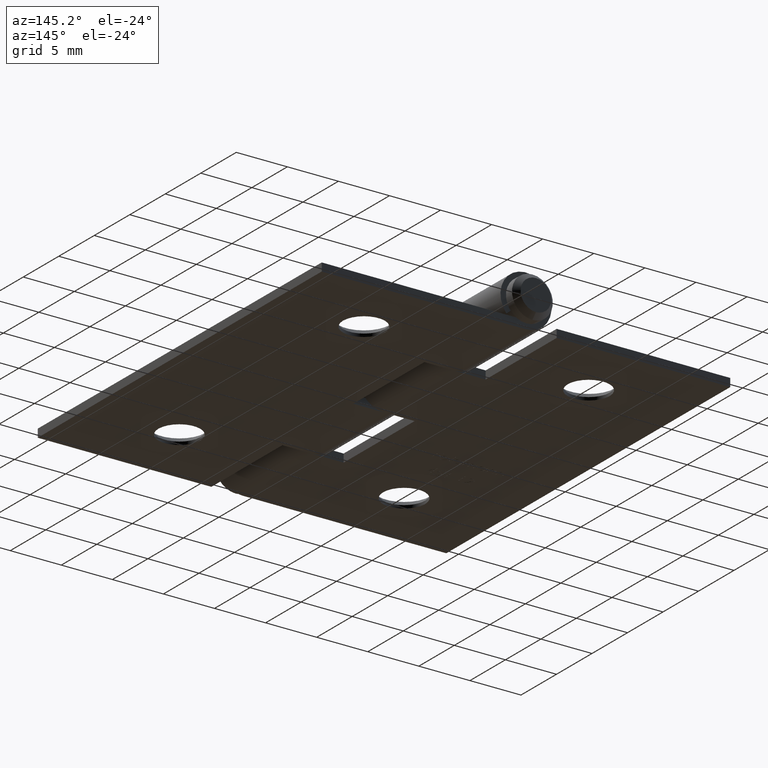
[diagram: clean part render]
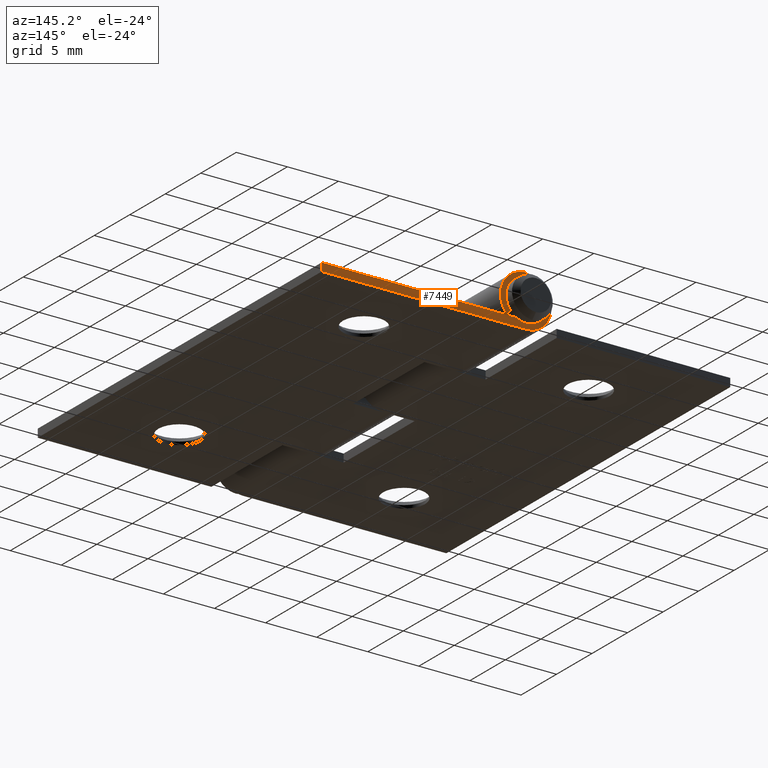
[diagram: same view with one face highlighted and labeled with its STEP entity id]
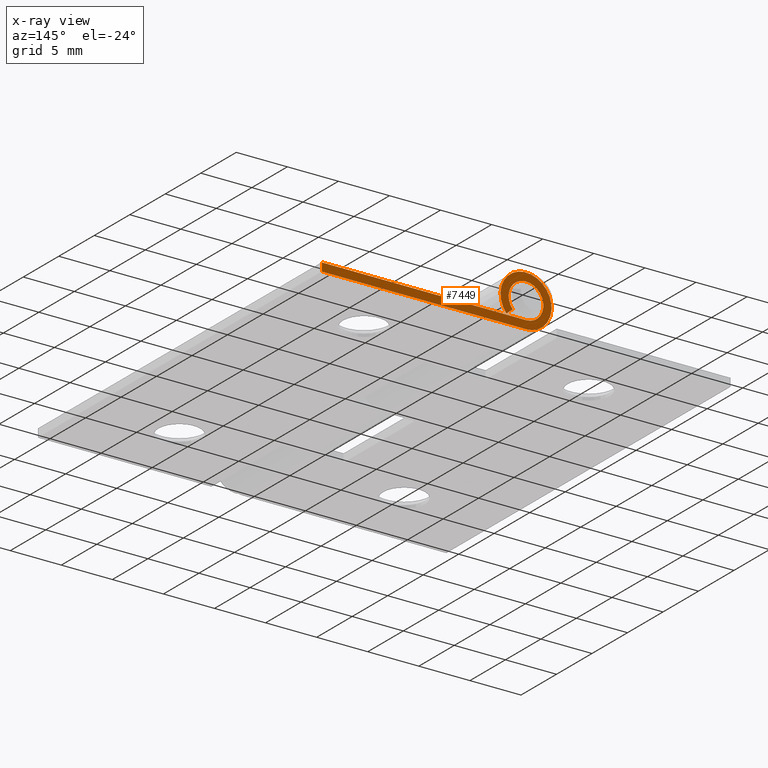
[diagram: x-ray of the same camera — body ghosted, the highlighted face saturated]
A machine part, auxiliary view. The second image highlights one B-rep face of the part: STEP entity #7449.
The next image is the same camera in x-ray: the body ghosted, the highlighted face saturated — about 0% of this face is hidden behind the body in this view.
In plain terms, the highlighted planar face has unit normal (0, 1, 0).
Its self-contained STEP definition (entity closure, byte-faithful):
#415 = EDGE_CURVE ( 'NONE', #5086, #503, #9771, .T. ) ;
#503 = VERTEX_POINT ( 'NONE', #4719 ) ;
#550 = LINE ( 'NONE', #2232, #8955 ) ;
#902 = LINE ( 'NONE', #8198, #2554 ) ;
#953 = VERTEX_POINT ( 'NONE', #10126 ) ;
#1132 = VECTOR ( 'NONE', #7046, 1000.000000000000227 ) ;
#1250 = CARTESIAN_POINT ( 'NONE',  ( -2.500000000000000444, -20.00000000000000000, 1.084202172485504434E-16 ) ) ;
#1499 = DIRECTION ( 'NONE',  ( 0.000000000000000000, 0.000000000000000000, -1.000000000000000000 ) ) ;
#1723 = AXIS2_PLACEMENT_3D ( 'NONE', #8261, #5685, #4091 ) ;
#1789 = EDGE_CURVE ( 'NONE', #503, #953, #10509, .T. ) ;
#1934 = CARTESIAN_POINT ( 'NONE',  ( -3.806237344436302017, -20.00000000000000000, 1.412000000000000588 ) ) ;
#2068 = CARTESIAN_POINT ( 'NONE',  ( -22.50000000000000000, -20.00000000000000000, 2.493664996716660198E-15 ) ) ;
#2232 = CARTESIAN_POINT ( 'NONE',  ( -2.500000000000000444, -20.00000000000000000, 0.7999999999999999334 ) ) ;
#2251 = CARTESIAN_POINT ( 'NONE',  ( -4.420937271229854026, -20.00000000000000000, 0.9000000000000002442 ) ) ;
#2554 = VECTOR ( 'NONE', #5039, 1000.000000000000000 ) ;
#2785 = ORIENTED_EDGE ( 'NONE', *, *, #7700, .F. ) ;
#3446 = DIRECTION ( 'NONE',  ( 0.000000000000000000, -1.000000000000000000, 0.000000000000000000 ) ) ;
#3838 = EDGE_CURVE ( 'NONE', #3971, #5086, #10478, .T. ) ;
#3840 = VECTOR ( 'NONE', #7752, 1000.000000000000000 ) ;
#3971 = VERTEX_POINT ( 'NONE', #5102 ) ;
#4014 = AXIS2_PLACEMENT_3D ( 'NONE', #8348, #3446, #9114 ) ;
#4087 = VERTEX_POINT ( 'NONE', #2068 ) ;
#4091 = DIRECTION ( 'NONE',  ( 0.000000000000000000, 0.000000000000000000, -1.000000000000000000 ) ) ;
#4216 = ORIENTED_EDGE ( 'NONE', *, *, #3838, .F. ) ;
#4609 = DIRECTION ( 'NONE',  ( 0.000000000000000000, 1.000000000000000000, -0.000000000000000000 ) ) ;
#4719 = CARTESIAN_POINT ( 'NONE',  ( -4.420937271229854026, -20.00000000000000000, 0.9000000000000002442 ) ) ;
#4843 = ORIENTED_EDGE ( 'NONE', *, *, #5940, .F. ) ;
#4870 = VERTEX_POINT ( 'NONE', #7929 ) ;
#5039 = DIRECTION ( 'NONE',  ( -0.000000000000000000, -0.000000000000000000, 1.000000000000000000 ) ) ;
#5086 = VERTEX_POINT ( 'NONE', #1934 ) ;
#5102 = CARTESIAN_POINT ( 'NONE',  ( -2.500000000000000444, -20.00000000000000000, 0.7999999999999999334 ) ) ;
#5216 = ORIENTED_EDGE ( 'NONE', *, *, #8994, .F. ) ;
#5222 = PLANE ( 'NONE',  #4014 ) ;
#5503 = ORIENTED_EDGE ( 'NONE', *, *, #415, .F. ) ;
#5685 = DIRECTION ( 'NONE',  ( -0.000000000000000000, -1.000000000000000000, 0.000000000000000000 ) ) ;
#5940 = EDGE_CURVE ( 'NONE', #4870, #3971, #550, .T. ) ;
#6208 = AXIS2_PLACEMENT_3D ( 'NONE', #9555, #4609, #1499 ) ;
#7046 = DIRECTION ( 'NONE',  ( -0.7683749084919416772, -0.000000000000000000, -0.6400000000000002354 ) ) ;
#7449 = ADVANCED_FACE ( 'NONE', ( #9942 ), #5222, .T. ) ;
#7700 = EDGE_CURVE ( 'NONE', #953, #4087, #8418, .T. ) ;
#7752 = DIRECTION ( 'NONE',  ( -1.000000000000000000, 0.000000000000000000, 1.192622389734055124E-16 ) ) ;
#7929 = CARTESIAN_POINT ( 'NONE',  ( -22.50000000000000000, -20.00000000000000000, 0.8000000000000024869 ) ) ;
#8198 = CARTESIAN_POINT ( 'NONE',  ( -22.50000000000000000, -20.00000000000000000, 0.8000000000000024869 ) ) ;
#8261 = CARTESIAN_POINT ( 'NONE',  ( -2.500000000000000000, -20.00000000000000000, 2.500000000000000000 ) ) ;
#8348 = CARTESIAN_POINT ( 'NONE',  ( -2.500000000000000000, -20.00000000000000000, 2.500000000000000000 ) ) ;
#8418 = LINE ( 'NONE', #1250, #3840 ) ;
#8804 = ORIENTED_EDGE ( 'NONE', *, *, #1789, .F. ) ;
#8955 = VECTOR ( 'NONE', #9573, 1000.000000000000000 ) ;
#8994 = EDGE_CURVE ( 'NONE', #4087, #4870, #902, .T. ) ;
#9114 = DIRECTION ( 'NONE',  ( 0.000000000000000000, -0.000000000000000000, -1.000000000000000000 ) ) ;
#9555 = CARTESIAN_POINT ( 'NONE',  ( -2.500000000000000000, -20.00000000000000000, 2.500000000000000000 ) ) ;
#9573 = DIRECTION ( 'NONE',  ( 1.000000000000000000, -0.000000000000000000, -1.301042606982605567E-16 ) ) ;
#9771 = LINE ( 'NONE', #2251, #1132 ) ;
#9942 = FACE_OUTER_BOUND ( 'NONE', #10384, .T. ) ;
#10126 = CARTESIAN_POINT ( 'NONE',  ( -2.500000000000000444, -20.00000000000000000, 1.084202172485504434E-16 ) ) ;
#10384 = EDGE_LOOP ( 'NONE', ( #8804, #5503, #4216, #4843, #5216, #2785 ) ) ;
#10478 = CIRCLE ( 'NONE', #1723, 1.700000000000000178 ) ;
#10509 = CIRCLE ( 'NONE', #6208, 2.499999999999999556 ) ;